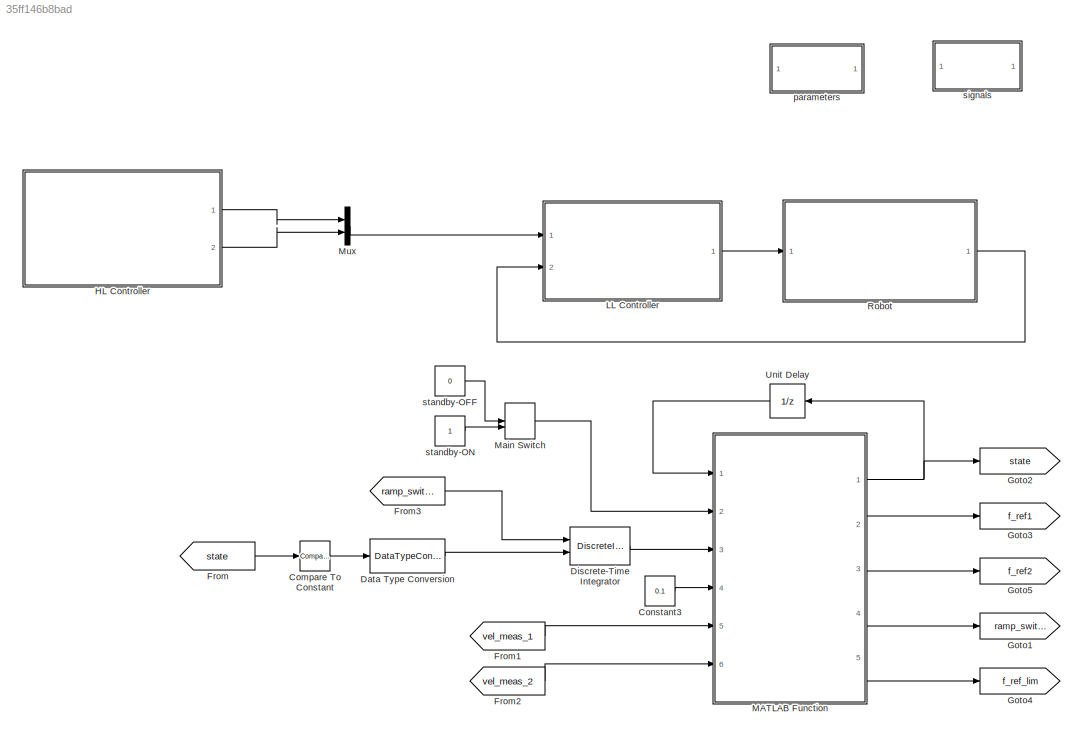
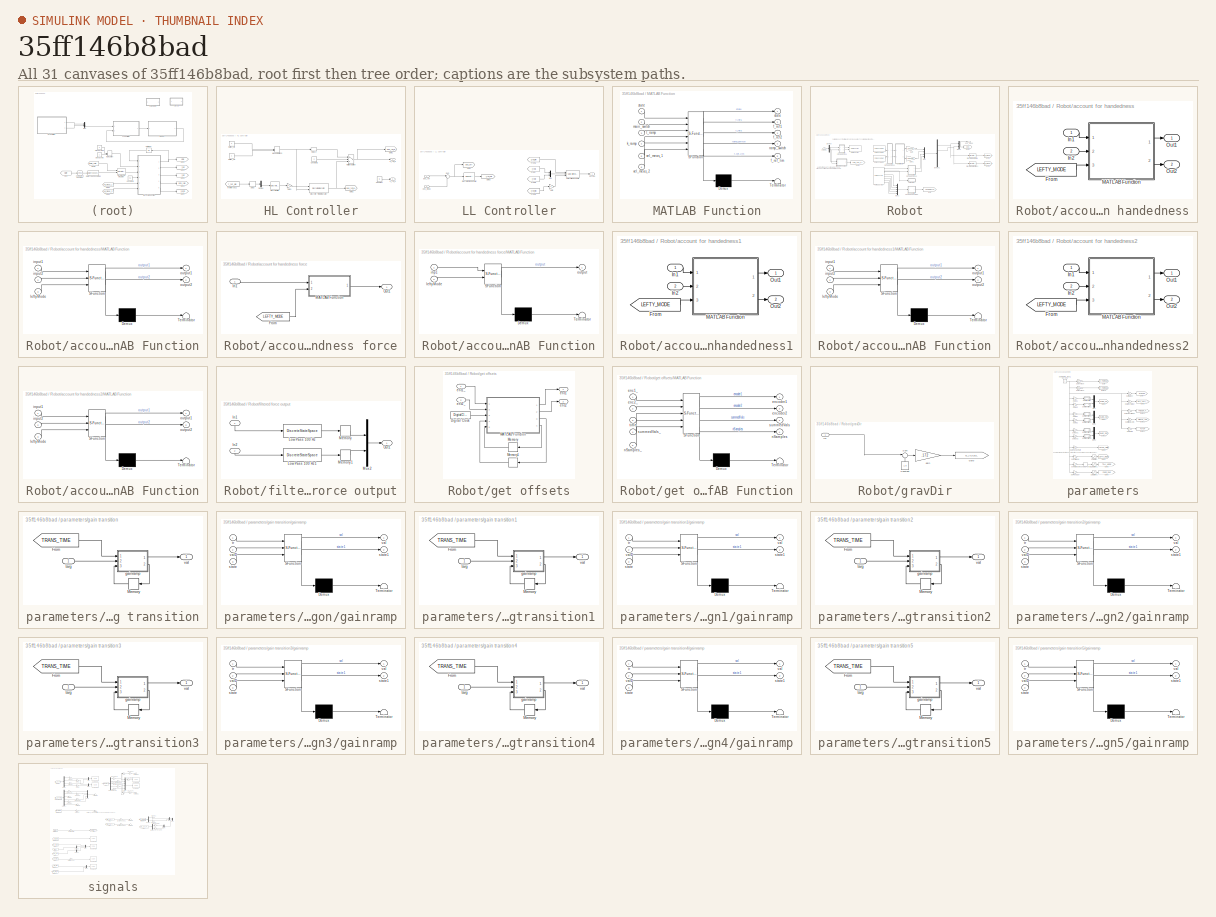
[diagram: thumbnail index - all 31 canvases of the model, root first then tree order]
MODEL slx_35ff146b8bad
KIND model
CONFIG AbsTol = auto
CONFIG FixedStep = .001
CONFIG InitFcn = settupFilter;
CONFIG MaxStep = auto
CONFIG MinStep = auto
CONFIG PreLoadFcn = settupFilter;
CONFIG RelTol = 1e-3
CONFIG SampleTimeConstraint = Unconstrained
CONFIG Solver = FixedStepDiscrete
CONFIG SolverMode = Auto
CONFIG SolverName = FixedStepDiscrete
CONFIG StartTime = 0.0
CONFIG StopTime = inf
BLOCK [Reference] Compare To Constant  REF=simulink/Logic and Bit
Operations/Compare
To Constant
  Ports = [1, 1]
  SourceBlock = simulink/Logic and Bit\nOperations/Compare\nTo Constant
  SourceType = Compare To Constant
BLOCK [Constant] Constant3
  Value = 0.1
BLOCK [DataTypeConversion] Data Type Conversion
  RndMeth = Floor
  SaturateOnIntegerOverflow = off
BLOCK [DiscreteIntegrator] Discrete-Time Integrator
  ExternalReset = either
  ICPrevOutput = DiscIntNeverNeededParam
  ICPrevScaledInput = DiscIntNeverNeededParam
  InitialConditionSetting = State (most efficient)
  LowerSaturationLimit = 0
  Ports = [2, 1]
  SampleTime = -1
  UpperSaturationLimit = 0.9
BLOCK [From] From
  GotoTag = state
  TagVisibility = global
BLOCK [From] From1
  GotoTag = vel_meas_1
  TagVisibility = global
BLOCK [From] From2
  GotoTag = vel_meas_2
  TagVisibility = global
BLOCK [From] From3
  GotoTag = ramp_switch
  TagVisibility = global
BLOCK [Goto] Goto1
  GotoTag = ramp_switch
  TagVisibility = global
BLOCK [Goto] Goto2
  GotoTag = state
  TagVisibility = global
BLOCK [Goto] Goto3
  GotoTag = f_ref1
  TagVisibility = global
BLOCK [Goto] Goto4
  GotoTag = f_ref_lim
  TagVisibility = global
BLOCK [Goto] Goto5
  GotoTag = f_ref2
  TagVisibility = global
BLOCK [SubSystem] HL Controller
  Ports = [0, 2]
  RequestExecContextInheritance = off
  Variant = off
BLOCK [Constant] HL Controller/Constant
  Value = .8
BLOCK [Constant] HL Controller/Constant2
  Value = 0
BLOCK [Delay] HL Controller/Delay
  DelayLength = 1
  InitialCondition = 0
  InputPortMap = u0
  Ports = [1, 1]
BLOCK [Delay] HL Controller/Delay1
  DelayLength = 1
  InitialCondition = 0
  InputPortMap = u0
  Ports = [1, 1]
BLOCK [Demux] HL Controller/Demux
  DisplayOption = bar
  Outputs = 2
  Ports = [1, 2]
BLOCK [DiscreteFilter] HL Controller/Discrete Filter
  Denominator = [a_hp]
  InputPortMap = u0
  Numerator = [b_hp]
  Ports = [1, 1]
BLOCK [DiscreteIntegrator] HL Controller/Discrete-Time Integrator
  ExternalReset = either
  ICPrevOutput = DiscIntNeverNeededParam
  ICPrevScaledInput = DiscIntNeverNeededParam
  InitialConditionSetting = State (most efficient)
  LimitOutput = on
  LowerSaturationLimit = 0
  Ports = [2, 1]
  SampleTime = -1
  UpperSaturationLimit = 0.9
BLOCK [Gain] HL Controller/Gain1
  Gain = -1
  OutDataTypeStr = Inherit: Inherit via internal rule
  ParamDataTypeStr = Inherit: Inherit via internal rule
  SaturateOnIntegerOverflow = off
BLOCK [Goto] HL Controller/Goto1
  GotoTag = pos_ref_g
  TagVisibility = global
BLOCK [Goto] HL Controller/Goto2
  GotoTag = pos_ref_g_2
  TagVisibility = global
BLOCK [ManualSwitch] HL Controller/Manual Switch3
  CurrentSetting = 0
BLOCK [MultiPortSwitch] HL Controller/Multiport Switch
  DataPortIndices = {0,1}
  DataPortOrder = Specify indices
  InputSameDT = off
  Ports = [3, 1]
  SaturateOnIntegerOverflow = off
BLOCK [Constant] HL Controller/Switch_Off
  Value = 0
BLOCK [Constant] HL Controller/Switch_On
BLOCK [From] HL Controller/from forces2
  GotoTag = f_ref_pid
  TagVisibility = global
BLOCK [Outport] HL Controller/p_ref_b
  IconDisplay = Port number
  Port = 2
BLOCK [Outport] HL Controller/p_ref_g
  IconDisplay = Port number
BLOCK [SubSystem] LL Controller
  Ports = [2, 1]
  RequestExecContextInheritance = off
  Variant = off
BLOCK [Reference] LL Controller/Discrete PID Controller  REF=simulink/Continuous/PID Controller
  Ports = [1, 1]
  SourceBlock = simulink/Continuous/PID Controller
  SourceType = PID 1dof
BLOCK [Outport] LL Controller/Forces
  IconDisplay = Port number
BLOCK [From] LL Controller/From
  GotoTag = f_ref1
  TagVisibility = global
BLOCK [From] LL Controller/From1
  GotoTag = f_ref_lim
  TagVisibility = global
BLOCK [From] LL Controller/From2
  GotoTag = f_ref_lim
  TagVisibility = global
BLOCK [From] LL Controller/From3
  GotoTag = f_ref2
  TagVisibility = global
BLOCK [Gain] LL Controller/Gain
  Gain = -1
  OutDataTypeStr = Inherit: Inherit via internal rule
  ParamDataTypeStr = Inherit: Inherit via internal rule
  SaturateOnIntegerOverflow = off
BLOCK [Goto] LL Controller/Goto2
  GotoTag = pos_err
  TagVisibility = global
BLOCK [Goto] LL Controller/Goto3
  GotoTag = f_ref_pid
  TagVisibility = global
BLOCK [Mux] LL Controller/Mux
  DisplayOption = bar
  Inputs = 2
  Ports = [2, 1]
BLOCK [Reference] LL Controller/Saturation Dynamic  REF=simulink/Discontinuities/Saturation
Dynamic
  Ports = [3, 1]
  SourceBlock = simulink/Discontinuities/Saturation\nDynamic
  SourceType = Saturation Dynamic
BLOCK [Sum] LL Controller/Sum
  IconShape = round
  InputSameDT = off
  Inputs = |+-
  OutDataTypeStr = Inherit: Inherit via internal rule
  Ports = [2, 1]
  SaturateOnIntegerOverflow = off
BLOCK [Inport] LL Controller/pos_meas
  IconDisplay = Port number
  Port = 2
BLOCK [Inport] LL Controller/pos_ref
  IconDisplay = Port number
BLOCK [SubSystem] MATLAB Function
  ErrorFcn = Stateflow.Translate.translate
  MinAlgLoopOccurrences = on
  PermitHierarchicalResolution = ExplicitOnly
  Ports = [6, 5]
  RequestExecContextInheritance = off
  SFBlockType = MATLAB Function
  TreatAsAtomicUnit = on
  Variant = off
BLOCK [Demux] MATLAB Function/ Demux 
  Outputs = 1
  Ports = [1, 1]
BLOCK [S-Function] MATLAB Function/ SFunction 
  EnableBusSupport = on
  FunctionName = sf_sfun
  PortCounts = [6 6]
  Ports = [6, 6]
  SFunctionDeploymentMode = off
  Tag = Stateflow S-Function FINGERGame 2
BLOCK [Terminator] MATLAB Function/ Terminator 
BLOCK [Outport] MATLAB Function/f_ref1
  IconDisplay = Port number
  Port = 2
BLOCK [Outport] MATLAB Function/f_ref2
  IconDisplay = Port number
  Port = 3
BLOCK [Outport] MATLAB Function/f_ref_lim
  IconDisplay = Port number
  Port = 5
BLOCK [Inport] MATLAB Function/k_ramp
  IconDisplay = Port number
  Port = 4
BLOCK [Inport] MATLAB Function/main_switch
  IconDisplay = Port number
  Port = 2
BLOCK [Outport] MATLAB Function/ramp_switch
  IconDisplay = Port number
  Port = 4
BLOCK [Outport] MATLAB Function/state
  IconDisplay = Port number
BLOCK [Inport] MATLAB Function/state 
  IconDisplay = Port number
BLOCK [Inport] MATLAB Function/t_ramp
  IconDisplay = Port number
  Port = 3
BLOCK [Inport] MATLAB Function/vel_meas_1
  IconDisplay = Port number
  Port = 5
BLOCK [Inport] MATLAB Function/vel_meas_2
  IconDisplay = Port number
  Port = 6
BLOCK [ManualSwitch] Main Switch
BLOCK [Mux] Mux
  DisplayOption = bar
  Inputs = 2
  Ports = [2, 1]
BLOCK [SubSystem] Robot
  Ports = [1, 1]
  RequestExecContextInheritance = off
  Variant = off
BLOCK [Demux] Robot/Demux
  DisplayOption = bar
  Outputs = 2
  Ports = [1, 2]
BLOCK [Demux] Robot/Demux1
  DisplayOption = bar
  Ports = [1, 4]
BLOCK [Reference] Robot/Discrete Derivative  REF=simulink/Discrete/Discrete Derivative
  Ports = [1, 1]
  SourceBlock = simulink/Discrete/Discrete Derivative
  SourceType = Discrete Derivative
BLOCK [Reference] Robot/Discrete Derivative1  REF=simulink/Discrete/Discrete Derivative
  Ports = [1, 1]
  SourceBlock = simulink/Discrete/Discrete Derivative
  SourceType = Discrete Derivative
BLOCK [Inport] Robot/Forces
  IconDisplay = Port number
BLOCK [Gain] Robot/Gain
  Gain = 1/4500.0
  OutDataTypeStr = Inherit: Inherit via internal rule
  ParamDataTypeStr = Inherit: Inherit via internal rule
  SaturateOnIntegerOverflow = off
BLOCK [Gain] Robot/Gain1
  Gain = 1/4500.0
  OutDataTypeStr = Inherit: Inherit via internal rule
  ParamDataTypeStr = Inherit: Inherit via internal rule
  SaturateOnIntegerOverflow = off
BLOCK [Goto] Robot/Goto
  GotoTag = LOADCELLS
  TagVisibility = global
BLOCK [Goto] Robot/Goto1
  GotoTag = AVE_ACT_FORCE
  TagVisibility = global
BLOCK [Goto] Robot/Goto2
  GotoTag = pos
  TagVisibility = global
BLOCK [Goto] Robot/Goto5
  GotoTag = vel_meas_1
  TagVisibility = global
BLOCK [Goto] Robot/Goto6
  GotoTag = vel_meas_2
  TagVisibility = global
BLOCK [Mux] Robot/Mux
  DisplayOption = bar
  Ports = [4, 1]
BLOCK [Mux] Robot/Mux1
  DisplayOption = bar
  Inputs = 5
  Ports = [5, 1]
BLOCK [Mux] Robot/Mux3
  DisplayOption = bar
  Inputs = 2
  Ports = [2, 1]
BLOCK [Reference] Robot/PCI 6221 ENC   REF=xpcnilib/Incremental
Encoder/PCI 6221 ENC 
  Ports = [0, 1]
  SourceBlock = xpcnilib/Incremental\nEncoder/PCI 6221 ENC
  SourceType = encinpnipci6221
BLOCK [Reference] Robot/PCI 6221 ENC 1  REF=xpcnilib/Incremental
Encoder/PCI 6221 ENC 
  Ports = [0, 1]
  SourceBlock = xpcnilib/Incremental\nEncoder/PCI 6221 ENC
  SourceType = encinpnipci6221
BLOCK [Reference] Robot/PCI-6221 AD1  REF=xpcnilib/A//D/M Series/PCI-6221 AD
  Ports = [0, 8]
  SourceBlock = xpcnilib/A//D/M Series/PCI-6221 AD
  SourceType = adnipci6221
BLOCK [Reference] Robot/PCI-6221 DA  REF=xpcnilib/D//A/M Series/PCI-6221 DA
  Ports = [2]
  SourceBlock = xpcnilib/D//A/M Series/PCI-6221 DA
  SourceType = danipci6221
BLOCK [SubSystem] Robot/account for handedness
  Ports = [2, 2]
  RequestExecContextInheritance = off
  Variant = off
BLOCK [SubSystem] Robot/account for handedness force
  Ports = [1, 1]
  RequestExecContextInheritance = off
  Variant = off
BLOCK [From] Robot/account for handedness force/From
  GotoTag = LEFTY_MODE
  TagVisibility = global
BLOCK [Inport] Robot/account for handedness force/In1
  IconDisplay = Port number
BLOCK [SubSystem] Robot/account for handedness force/MATLAB Function
  ErrorFcn = Stateflow.Translate.translate
  PermitHierarchicalResolution = ExplicitOnly
  Ports = [2, 1]
  RequestExecContextInheritance = off
  SFBlockType = MATLAB Function
  TreatAsAtomicUnit = on
  Variant = off
BLOCK [Demux] Robot/account for handedness force/MATLAB Function/ Demux 
  Outputs = 1
  Ports = [1, 1]
BLOCK [S-Function] Robot/account for handedness force/MATLAB Function/ SFunction 
  EnableBusSupport = on
  FunctionName = sf_sfun
  PortCounts = [2 2]
  Ports = [2, 2]
  SFunctionDeploymentMode = off
  Tag = Stateflow S-Function FINGERGame 26
BLOCK [Terminator] Robot/account for handedness force/MATLAB Function/ Terminator 
BLOCK [Inport] Robot/account for handedness force/MATLAB Function/inp1
  IconDisplay = Port number
BLOCK [Inport] Robot/account for handedness force/MATLAB Function/leftyMode
  IconDisplay = Port number
  Port = 2
BLOCK [Outport] Robot/account for handedness force/MATLAB Function/output
  IconDisplay = Port number
BLOCK [Outport] Robot/account for handedness force/Out1
  IconDisplay = Port number
BLOCK [From] Robot/account for handedness/From
  GotoTag = LEFTY_MODE
  TagVisibility = global
BLOCK [Inport] Robot/account for handedness/In1
  IconDisplay = Port number
BLOCK [Inport] Robot/account for handedness/In2
  IconDisplay = Port number
  Port = 2
BLOCK [SubSystem] Robot/account for handedness/MATLAB Function
  ErrorFcn = Stateflow.Translate.translate
  PermitHierarchicalResolution = ExplicitOnly
  Ports = [3, 2]
  RequestExecContextInheritance = off
  SFBlockType = MATLAB Function
  TreatAsAtomicUnit = on
  Variant = off
BLOCK [Demux] Robot/account for handedness/MATLAB Function/ Demux 
  Outputs = 1
  Ports = [1, 1]
BLOCK [S-Function] Robot/account for handedness/MATLAB Function/ SFunction 
  EnableBusSupport = on
  FunctionName = sf_sfun
  PortCounts = [3 3]
  Ports = [3, 3]
  SFunctionDeploymentMode = off
  Tag = Stateflow S-Function FINGERGame 11
BLOCK [Terminator] Robot/account for handedness/MATLAB Function/ Terminator 
BLOCK [Inport] Robot/account for handedness/MATLAB Function/input1
  IconDisplay = Port number
BLOCK [Inport] Robot/account for handedness/MATLAB Function/input2
  IconDisplay = Port number
  Port = 2
BLOCK [Inport] Robot/account for handedness/MATLAB Function/leftyMode
  IconDisplay = Port number
  Port = 3
BLOCK [Outport] Robot/account for handedness/MATLAB Function/output1
  IconDisplay = Port number
BLOCK [Outport] Robot/account for handedness/MATLAB Function/output2
  IconDisplay = Port number
  Port = 2
BLOCK [Outport] Robot/account for handedness/Out1
  IconDisplay = Port number
BLOCK [Outport] Robot/account for handedness/Out2
  IconDisplay = Port number
  Port = 2
BLOCK [SubSystem] Robot/account for handedness1
  Ports = [2, 2]
  RequestExecContextInheritance = off
  Variant = off
BLOCK [From] Robot/account for handedness1/From
  GotoTag = LEFTY_MODE
  TagVisibility = global
BLOCK [Inport] Robot/account for handedness1/In1
  IconDisplay = Port number
BLOCK [Inport] Robot/account for handedness1/In2
  IconDisplay = Port number
  Port = 2
BLOCK [SubSystem] Robot/account for handedness1/MATLAB Function
  ErrorFcn = Stateflow.Translate.translate
  PermitHierarchicalResolution = ExplicitOnly
  Ports = [3, 2]
  RequestExecContextInheritance = off
  SFBlockType = MATLAB Function
  TreatAsAtomicUnit = on
  Variant = off
BLOCK [Demux] Robot/account for handedness1/MATLAB Function/ Demux 
  Outputs = 1
  Ports = [1, 1]
BLOCK [S-Function] Robot/account for handedness1/MATLAB Function/ SFunction 
  EnableBusSupport = on
  FunctionName = sf_sfun
  PortCounts = [3 3]
  Ports = [3, 3]
  SFunctionDeploymentMode = off
  Tag = Stateflow S-Function FINGERGame 12
BLOCK [Terminator] Robot/account for handedness1/MATLAB Function/ Terminator 
BLOCK [Inport] Robot/account for handedness1/MATLAB Function/input1
  IconDisplay = Port number
BLOCK [Inport] Robot/account for handedness1/MATLAB Function/input2
  IconDisplay = Port number
  Port = 2
BLOCK [Inport] Robot/account for handedness1/MATLAB Function/leftyMode
  IconDisplay = Port number
  Port = 3
BLOCK [Outport] Robot/account for handedness1/MATLAB Function/output1
  IconDisplay = Port number
BLOCK [Outport] Robot/account for handedness1/MATLAB Function/output2
  IconDisplay = Port number
  Port = 2
BLOCK [Outport] Robot/account for handedness1/Out1
  IconDisplay = Port number
BLOCK [Outport] Robot/account for handedness1/Out2
  IconDisplay = Port number
  Port = 2
BLOCK [SubSystem] Robot/account for handedness2
  Ports = [2, 2]
  RequestExecContextInheritance = off
  Variant = off
BLOCK [From] Robot/account for handedness2/From
  GotoTag = LEFTY_MODE
  TagVisibility = global
BLOCK [Inport] Robot/account for handedness2/In1
  IconDisplay = Port number
BLOCK [Inport] Robot/account for handedness2/In2
  IconDisplay = Port number
  Port = 2
BLOCK [SubSystem] Robot/account for handedness2/MATLAB Function
  ErrorFcn = Stateflow.Translate.translate
  PermitHierarchicalResolution = ExplicitOnly
  Ports = [3, 2]
  RequestExecContextInheritance = off
  SFBlockType = MATLAB Function
  TreatAsAtomicUnit = on
  Variant = off
BLOCK [Demux] Robot/account for handedness2/MATLAB Function/ Demux 
  Outputs = 1
  Ports = [1, 1]
BLOCK [S-Function] Robot/account for handedness2/MATLAB Function/ SFunction 
  EnableBusSupport = on
  FunctionName = sf_sfun
  PortCounts = [3 3]
  Ports = [3, 3]
  SFunctionDeploymentMode = off
  Tag = Stateflow S-Function FINGERGame 13
BLOCK [Terminator] Robot/account for handedness2/MATLAB Function/ Terminator 
BLOCK [Inport] Robot/account for handedness2/MATLAB Function/input1
  IconDisplay = Port number
BLOCK [Inport] Robot/account for handedness2/MATLAB Function/input2
  IconDisplay = Port number
  Port = 2
BLOCK [Inport] Robot/account for handedness2/MATLAB Function/leftyMode
  IconDisplay = Port number
  Port = 3
BLOCK [Outport] Robot/account for handedness2/MATLAB Function/output1
  IconDisplay = Port number
BLOCK [Outport] Robot/account for handedness2/MATLAB Function/output2
  IconDisplay = Port number
  Port = 2
BLOCK [Outport] Robot/account for handedness2/Out1
  IconDisplay = Port number
BLOCK [Outport] Robot/account for handedness2/Out2
  IconDisplay = Port number
  Port = 2
BLOCK [SubSystem] Robot/filtered force output
  Ports = [2, 1]
  RequestExecContextInheritance = off
  Variant = off
BLOCK [Inport] Robot/filtered force output/In1
  IconDisplay = Port number
BLOCK [Inport] Robot/filtered force output/In2
  IconDisplay = Port number
  Port = 2
BLOCK [DiscreteStateSpace] Robot/filtered force output/Low Pass 100 Hz
  A = Alow
  B = Blow
  C = Clow
  D = Dlow
  SampleTime = -1
  X0 = x0low
BLOCK [DiscreteStateSpace] Robot/filtered force output/Low Pass 100 Hz1
  A = Alow
  B = Blow
  C = Clow
  D = Dlow
  SampleTime = -1
  X0 = x0low
BLOCK [Memory] Robot/filtered force output/Memory
BLOCK [Memory] Robot/filtered force output/Memory1
BLOCK [Mux] Robot/filtered force output/Mux2
  DisplayOption = bar
  Inputs = 2
  Ports = [2, 1]
BLOCK [Outport] Robot/filtered force output/Out1
  IconDisplay = Port number
BLOCK [SubSystem] Robot/get offsets
  Ports = [2, 2]
  RequestExecContextInheritance = off
  Variant = off
BLOCK [DigitalClock] Robot/get offsets/Digital Clock
  SampleTime = .001
BLOCK [SubSystem] Robot/get offsets/MATLAB Function
  ErrorFcn = Stateflow.Translate.translate
  PermitHierarchicalResolution = ExplicitOnly
  Ports = [5, 4]
  RequestExecContextInheritance = off
  SFBlockType = MATLAB Function
  TreatAsAtomicUnit = on
  Variant = off
BLOCK [Demux] Robot/get offsets/MATLAB Function/ Demux 
  Outputs = 1
  Ports = [1, 1]
BLOCK [S-Function] Robot/get offsets/MATLAB Function/ SFunction 
  EnableBusSupport = on
  FunctionName = sf_sfun
  PortCounts = [5 5]
  Ports = [5, 5]
  SFunctionDeploymentMode = off
  Tag = Stateflow S-Function FINGERGame 9
BLOCK [Terminator] Robot/get offsets/MATLAB Function/ Terminator 
BLOCK [Inport] Robot/get offsets/MATLAB Function/enc1_
  IconDisplay = Port number
BLOCK [Inport] Robot/get offsets/MATLAB Function/enc2_
  IconDisplay = Port number
  Port = 2
BLOCK [Outport] Robot/get offsets/MATLAB Function/encoder1
  IconDisplay = Port number
BLOCK [Outport] Robot/get offsets/MATLAB Function/encoder2
  IconDisplay = Port number
  Port = 2
BLOCK [Outport] Robot/get offsets/MATLAB Function/nSamples
  IconDisplay = Port number
  Port = 4
BLOCK [Inport] Robot/get offsets/MATLAB Function/nSamples_
  IconDisplay = Port number
  Port = 5
BLOCK [Outport] Robot/get offsets/MATLAB Function/summedVals
  IconDisplay = Port number
  Port = 3
BLOCK [Inport] Robot/get offsets/MATLAB Function/summedVals_
  IconDisplay = Port number
  Port = 4
BLOCK [Inport] Robot/get offsets/MATLAB Function/time
  IconDisplay = Port number
  Port = 3
BLOCK [Memory] Robot/get offsets/Memory
BLOCK [Memory] Robot/get offsets/Memory1
  X0 = [0,0]
BLOCK [Outport] Robot/get offsets/enc1
  IconDisplay = Port number
BLOCK [Inport] Robot/get offsets/enc1_
  IconDisplay = Port number
BLOCK [Outport] Robot/get offsets/enc2
  IconDisplay = Port number
  Port = 2
BLOCK [Inport] Robot/get offsets/enc2_
  IconDisplay = Port number
  Port = 2
BLOCK [SubSystem] Robot/gravDir
  Ports = [1]
  RequestExecContextInheritance = off
  Variant = off
BLOCK [Constant] Robot/gravDir/Constant
  Value = 1.5
BLOCK [Goto] Robot/gravDir/Goto
  GotoTag = G_ACCEL
  TagVisibility = global
BLOCK [Inport] Robot/gravDir/In1
  IconDisplay = Port number
BLOCK [Sum] Robot/gravDir/Sum
  IconShape = round
  InputSameDT = off
  Inputs = |+-
  OutDataTypeStr = Inherit: Inherit via internal rule
  Ports = [2, 1]
  SaturateOnIntegerOverflow = off
BLOCK [Gain] Robot/gravDir/gain
  Gain = .172
  OutDataTypeStr = Inherit: Inherit via internal rule
  ParamDataTypeStr = Inherit: Inherit via internal rule
  SaturateOnIntegerOverflow = off
BLOCK [Outport] Robot/pos_meas
  IconDisplay = Port number
BLOCK [UnitDelay] Unit Delay
  InputProcessing = Elements as channels (sample based)
  SampleTime = -1
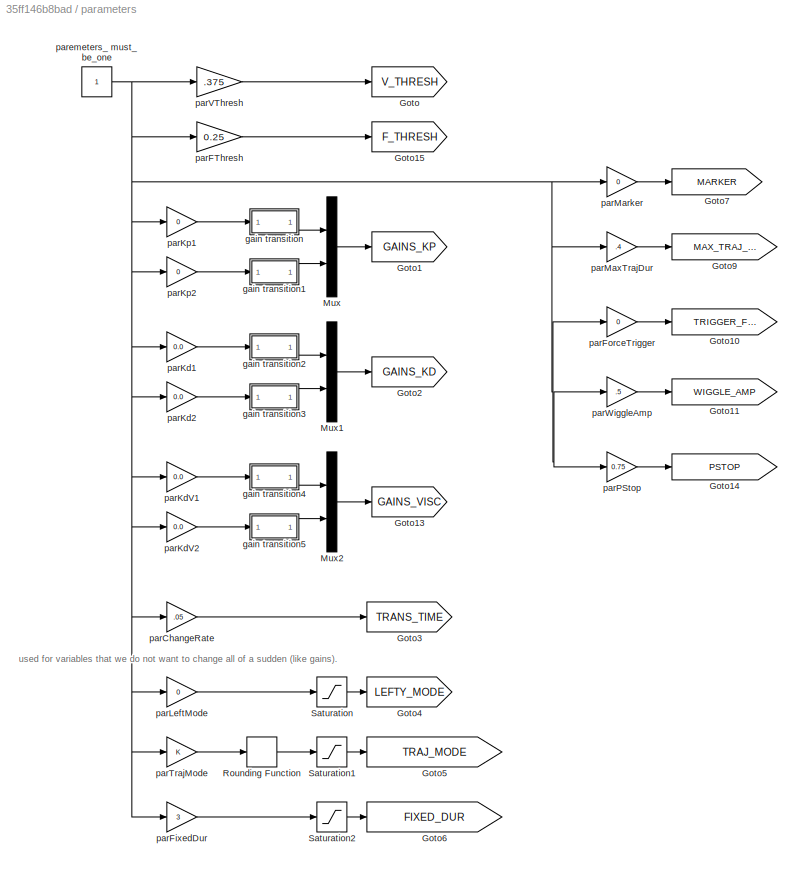
BLOCK [SubSystem] parameters
  Ports = []
  RequestExecContextInheritance = off
  Variant = off
BLOCK [Goto] parameters/Goto
  GotoTag = V_THRESH
  TagVisibility = global
BLOCK [Goto] parameters/Goto1
  GotoTag = GAINS_KP
  TagVisibility = global
BLOCK [Goto] parameters/Goto10
  GotoTag = TRIGGER_FORCE
  TagVisibility = global
BLOCK [Goto] parameters/Goto11
  GotoTag = WIGGLE_AMP
  TagVisibility = global
BLOCK [Goto] parameters/Goto13
  GotoTag = GAINS_VISC
  TagVisibility = global
BLOCK [Goto] parameters/Goto14
  GotoTag = PSTOP
  TagVisibility = global
BLOCK [Goto] parameters/Goto15
  GotoTag = F_THRESH
  TagVisibility = global
BLOCK [Goto] parameters/Goto2
  GotoTag = GAINS_KD
  TagVisibility = global
BLOCK [Goto] parameters/Goto3
  GotoTag = TRANS_TIME
  TagVisibility = global
BLOCK [Goto] parameters/Goto4
  GotoTag = LEFTY_MODE
  TagVisibility = global
BLOCK [Goto] parameters/Goto5
  GotoTag = TRAJ_MODE
  TagVisibility = global
BLOCK [Goto] parameters/Goto6
  GotoTag = FIXED_DUR
  TagVisibility = global
BLOCK [Goto] parameters/Goto7
  GotoTag = MARKER
  TagVisibility = global
BLOCK [Goto] parameters/Goto9
  GotoTag = MAX_TRAJ_DUR
  TagVisibility = global
BLOCK [Mux] parameters/Mux
  DisplayOption = bar
  Inputs = 2
  Ports = [2, 1]
BLOCK [Mux] parameters/Mux1
  DisplayOption = bar
  Inputs = 2
  Ports = [2, 1]
BLOCK [Mux] parameters/Mux2
  DisplayOption = bar
  Inputs = 2
  Ports = [2, 1]
BLOCK [Rounding] parameters/Rounding Function
  Operator = round
BLOCK [Saturate] parameters/Saturation
  InputPortMap = u0
  LowerLimit = 0
  Ports = [1, 1]
  UpperLimit = 1
BLOCK [Saturate] parameters/Saturation1
  InputPortMap = u0
  LowerLimit = 1
  Ports = [1, 1]
  UpperLimit = 4
BLOCK [Saturate] parameters/Saturation2
  InputPortMap = u0
  LowerLimit = .25
  Ports = [1, 1]
  UpperLimit = 10
BLOCK [SubSystem] parameters/gain transition
  Ports = [1, 1]
  RequestExecContextInheritance = off
  Variant = off
BLOCK [From] parameters/gain transition/From
  GotoTag = TRANS_TIME
  TagVisibility = global
BLOCK [Memory] parameters/gain transition/Memory
  X0 = zeros(1,4)
BLOCK [SubSystem] parameters/gain transition/gainramp
  ErrorFcn = Stateflow.Translate.translate
  PermitHierarchicalResolution = ExplicitOnly
  Ports = [3, 2]
  RequestExecContextInheritance = off
  SFBlockType = MATLAB Function
  TreatAsAtomicUnit = on
  Variant = off
BLOCK [Demux] parameters/gain transition/gainramp/ Demux 
  Outputs = 1
  Ports = [1, 1]
BLOCK [S-Function] parameters/gain transition/gainramp/ SFunction 
  EnableBusSupport = on
  FunctionName = sf_sfun
  PortCounts = [3 3]
  Ports = [3, 3]
  SFunctionDeploymentMode = off
  Tag = Stateflow S-Function FINGERGame 14
BLOCK [Terminator] parameters/gain transition/gainramp/ Terminator 
BLOCK [Inport] parameters/gain transition/gainramp/state
  IconDisplay = Port number
  Port = 3
BLOCK [Outport] parameters/gain transition/gainramp/state1
  IconDisplay = Port number
  Port = 2
BLOCK [Inport] parameters/gain transition/gainramp/tr
  IconDisplay = Port number
BLOCK [Outport] parameters/gain transition/gainramp/val
  IconDisplay = Port number
BLOCK [Inport] parameters/gain transition/gainramp/valD
  IconDisplay = Port number
  Port = 2
BLOCK [Inport] parameters/gain transition/targ
  IconDisplay = Port number
BLOCK [Outport] parameters/gain transition/val
  IconDisplay = Port number
BLOCK [SubSystem] parameters/gain transition1
  Ports = [1, 1]
  RequestExecContextInheritance = off
  Variant = off
BLOCK [From] parameters/gain transition1/From
  GotoTag = TRANS_TIME
  TagVisibility = global
BLOCK [Memory] parameters/gain transition1/Memory
  X0 = zeros(1,4)
BLOCK [SubSystem] parameters/gain transition1/gainramp
  ErrorFcn = Stateflow.Translate.translate
  PermitHierarchicalResolution = ExplicitOnly
  Ports = [3, 2]
  RequestExecContextInheritance = off
  SFBlockType = MATLAB Function
  TreatAsAtomicUnit = on
  Variant = off
BLOCK [Demux] parameters/gain transition1/gainramp/ Demux 
  Outputs = 1
  Ports = [1, 1]
BLOCK [S-Function] parameters/gain transition1/gainramp/ SFunction 
  EnableBusSupport = on
  FunctionName = sf_sfun
  PortCounts = [3 3]
  Ports = [3, 3]
  SFunctionDeploymentMode = off
  Tag = Stateflow S-Function FINGERGame 15
BLOCK [Terminator] parameters/gain transition1/gainramp/ Terminator 
BLOCK [Inport] parameters/gain transition1/gainramp/state
  IconDisplay = Port number
  Port = 3
BLOCK [Outport] parameters/gain transition1/gainramp/state1
  IconDisplay = Port number
  Port = 2
BLOCK [Inport] parameters/gain transition1/gainramp/tr
  IconDisplay = Port number
BLOCK [Outport] parameters/gain transition1/gainramp/val
  IconDisplay = Port number
BLOCK [Inport] parameters/gain transition1/gainramp/valD
  IconDisplay = Port number
  Port = 2
BLOCK [Inport] parameters/gain transition1/targ
  IconDisplay = Port number
BLOCK [Outport] parameters/gain transition1/val
  IconDisplay = Port number
BLOCK [SubSystem] parameters/gain transition2
  Ports = [1, 1]
  RequestExecContextInheritance = off
  Variant = off
BLOCK [From] parameters/gain transition2/From
  GotoTag = TRANS_TIME
  TagVisibility = global
BLOCK [Memory] parameters/gain transition2/Memory
  X0 = zeros(1,4)
BLOCK [SubSystem] parameters/gain transition2/gainramp
  ErrorFcn = Stateflow.Translate.translate
  PermitHierarchicalResolution = ExplicitOnly
  Ports = [3, 2]
  RequestExecContextInheritance = off
  SFBlockType = MATLAB Function
  TreatAsAtomicUnit = on
  Variant = off
BLOCK [Demux] parameters/gain transition2/gainramp/ Demux 
  Outputs = 1
  Ports = [1, 1]
BLOCK [S-Function] parameters/gain transition2/gainramp/ SFunction 
  EnableBusSupport = on
  FunctionName = sf_sfun
  PortCounts = [3 3]
  Ports = [3, 3]
  SFunctionDeploymentMode = off
  Tag = Stateflow S-Function FINGERGame 16
BLOCK [Terminator] parameters/gain transition2/gainramp/ Terminator 
BLOCK [Inport] parameters/gain transition2/gainramp/state
  IconDisplay = Port number
  Port = 3
BLOCK [Outport] parameters/gain transition2/gainramp/state1
  IconDisplay = Port number
  Port = 2
BLOCK [Inport] parameters/gain transition2/gainramp/tr
  IconDisplay = Port number
BLOCK [Outport] parameters/gain transition2/gainramp/val
  IconDisplay = Port number
BLOCK [Inport] parameters/gain transition2/gainramp/valD
  IconDisplay = Port number
  Port = 2
BLOCK [Inport] parameters/gain transition2/targ
  IconDisplay = Port number
BLOCK [Outport] parameters/gain transition2/val
  IconDisplay = Port number
BLOCK [SubSystem] parameters/gain transition3
  Ports = [1, 1]
  RequestExecContextInheritance = off
  Variant = off
BLOCK [From] parameters/gain transition3/From
  GotoTag = TRANS_TIME
  TagVisibility = global
BLOCK [Memory] parameters/gain transition3/Memory
  X0 = zeros(1,4)
BLOCK [SubSystem] parameters/gain transition3/gainramp
  ErrorFcn = Stateflow.Translate.translate
  PermitHierarchicalResolution = ExplicitOnly
  Ports = [3, 2]
  RequestExecContextInheritance = off
  SFBlockType = MATLAB Function
  TreatAsAtomicUnit = on
  Variant = off
BLOCK [Demux] parameters/gain transition3/gainramp/ Demux 
  Outputs = 1
  Ports = [1, 1]
BLOCK [S-Function] parameters/gain transition3/gainramp/ SFunction 
  EnableBusSupport = on
  FunctionName = sf_sfun
  PortCounts = [3 3]
  Ports = [3, 3]
  SFunctionDeploymentMode = off
  Tag = Stateflow S-Function FINGERGame 17
BLOCK [Terminator] parameters/gain transition3/gainramp/ Terminator 
BLOCK [Inport] parameters/gain transition3/gainramp/state
  IconDisplay = Port number
  Port = 3
BLOCK [Outport] parameters/gain transition3/gainramp/state1
  IconDisplay = Port number
  Port = 2
BLOCK [Inport] parameters/gain transition3/gainramp/tr
  IconDisplay = Port number
BLOCK [Outport] parameters/gain transition3/gainramp/val
  IconDisplay = Port number
BLOCK [Inport] parameters/gain transition3/gainramp/valD
  IconDisplay = Port number
  Port = 2
BLOCK [Inport] parameters/gain transition3/targ
  IconDisplay = Port number
BLOCK [Outport] parameters/gain transition3/val
  IconDisplay = Port number
BLOCK [SubSystem] parameters/gain transition4
  Ports = [1, 1]
  RequestExecContextInheritance = off
  Variant = off
BLOCK [From] parameters/gain transition4/From
  GotoTag = TRANS_TIME
  TagVisibility = global
BLOCK [Memory] parameters/gain transition4/Memory
  X0 = zeros(1,4)
BLOCK [SubSystem] parameters/gain transition4/gainramp
  ErrorFcn = Stateflow.Translate.translate
  PermitHierarchicalResolution = ExplicitOnly
  Ports = [3, 2]
  RequestExecContextInheritance = off
  SFBlockType = MATLAB Function
  TreatAsAtomicUnit = on
  Variant = off
BLOCK [Demux] parameters/gain transition4/gainramp/ Demux 
  Outputs = 1
  Ports = [1, 1]
BLOCK [S-Function] parameters/gain transition4/gainramp/ SFunction 
  EnableBusSupport = on
  FunctionName = sf_sfun
  PortCounts = [3 3]
  Ports = [3, 3]
  SFunctionDeploymentMode = off
  Tag = Stateflow S-Function FINGERGame 43
BLOCK [Terminator] parameters/gain transition4/gainramp/ Terminator 
BLOCK [Inport] parameters/gain transition4/gainramp/state
  IconDisplay = Port number
  Port = 3
BLOCK [Outport] parameters/gain transition4/gainramp/state1
  IconDisplay = Port number
  Port = 2
BLOCK [Inport] parameters/gain transition4/gainramp/tr
  IconDisplay = Port number
BLOCK [Outport] parameters/gain transition4/gainramp/val
  IconDisplay = Port number
BLOCK [Inport] parameters/gain transition4/gainramp/valD
  IconDisplay = Port number
  Port = 2
BLOCK [Inport] parameters/gain transition4/targ
  IconDisplay = Port number
BLOCK [Outport] parameters/gain transition4/val
  IconDisplay = Port number
BLOCK [SubSystem] parameters/gain transition5
  Ports = [1, 1]
  RequestExecContextInheritance = off
  Variant = off
BLOCK [From] parameters/gain transition5/From
  GotoTag = TRANS_TIME
  TagVisibility = global
BLOCK [Memory] parameters/gain transition5/Memory
  X0 = zeros(1,4)
BLOCK [SubSystem] parameters/gain transition5/gainramp
  ErrorFcn = Stateflow.Translate.translate
  PermitHierarchicalResolution = ExplicitOnly
  Ports = [3, 2]
  RequestExecContextInheritance = off
  SFBlockType = MATLAB Function
  TreatAsAtomicUnit = on
  Variant = off
BLOCK [Demux] parameters/gain transition5/gainramp/ Demux 
  Outputs = 1
  Ports = [1, 1]
BLOCK [S-Function] parameters/gain transition5/gainramp/ SFunction 
  EnableBusSupport = on
  FunctionName = sf_sfun
  PortCounts = [3 3]
  Ports = [3, 3]
  SFunctionDeploymentMode = off
  Tag = Stateflow S-Function FINGERGame 44
BLOCK [Terminator] parameters/gain transition5/gainramp/ Terminator 
BLOCK [Inport] parameters/gain transition5/gainramp/state
  IconDisplay = Port number
  Port = 3
BLOCK [Outport] parameters/gain transition5/gainramp/state1
  IconDisplay = Port number
  Port = 2
BLOCK [Inport] parameters/gain transition5/gainramp/tr
  IconDisplay = Port number
BLOCK [Outport] parameters/gain transition5/gainramp/val
  IconDisplay = Port number
BLOCK [Inport] parameters/gain transition5/gainramp/valD
  IconDisplay = Port number
  Port = 2
BLOCK [Inport] parameters/gain transition5/targ
  IconDisplay = Port number
BLOCK [Outport] parameters/gain transition5/val
  IconDisplay = Port number
BLOCK [Gain] parameters/parChangeRate
  Gain = .05
  OutDataTypeStr = Inherit: Inherit via internal rule
  ParamDataTypeStr = Inherit: Inherit via internal rule
  SaturateOnIntegerOverflow = off
BLOCK [Gain] parameters/parFThresh
  Gain = 0.25
  OutDataTypeStr = Inherit: Inherit via internal rule
  ParamDataTypeStr = Inherit: Inherit via internal rule
  SaturateOnIntegerOverflow = off
BLOCK [Gain] parameters/parFixedDur
  Gain = 3
  OutDataTypeStr = Inherit: Inherit via internal rule
  ParamDataTypeStr = Inherit: Inherit via internal rule
  SaturateOnIntegerOverflow = off
BLOCK [Gain] parameters/parForceTrigger
  Gain = 0
  OutDataTypeStr = Inherit: Inherit via internal rule
  ParamDataTypeStr = Inherit: Inherit via internal rule
  SaturateOnIntegerOverflow = off
BLOCK [Gain] parameters/parKd1
  Gain = 0.0
  OutDataTypeStr = Inherit: Inherit via internal rule
  ParamDataTypeStr = Inherit: Inherit via internal rule
  SaturateOnIntegerOverflow = off
BLOCK [Gain] parameters/parKd2
  Gain = 0.0
  OutDataTypeStr = Inherit: Inherit via internal rule
  ParamDataTypeStr = Inherit: Inherit via internal rule
  SaturateOnIntegerOverflow = off
BLOCK [Gain] parameters/parKdV1
  Gain = 0.0
  OutDataTypeStr = Inherit: Inherit via internal rule
  ParamDataTypeStr = Inherit: Inherit via internal rule
  SaturateOnIntegerOverflow = off
BLOCK [Gain] parameters/parKdV2
  Gain = 0.0
  OutDataTypeStr = Inherit: Inherit via internal rule
  ParamDataTypeStr = Inherit: Inherit via internal rule
  SaturateOnIntegerOverflow = off
BLOCK [Gain] parameters/parKp1
  Gain = 0
  OutDataTypeStr = Inherit: Inherit via internal rule
  ParamDataTypeStr = Inherit: Inherit via internal rule
  SaturateOnIntegerOverflow = off
BLOCK [Gain] parameters/parKp2
  Gain = 0
  OutDataTypeStr = Inherit: Inherit via internal rule
  ParamDataTypeStr = Inherit: Inherit via internal rule
  SaturateOnIntegerOverflow = off
BLOCK [Gain] parameters/parLeftMode
  Gain = 0
  OutDataTypeStr = Inherit: Inherit via internal rule
  ParamDataTypeStr = Inherit: Inherit via internal rule
  SaturateOnIntegerOverflow = off
BLOCK [Gain] parameters/parMarker
  Gain = 0
  OutDataTypeStr = Inherit: Inherit via internal rule
  ParamDataTypeStr = Inherit: Inherit via internal rule
  SaturateOnIntegerOverflow = off
BLOCK [Gain] parameters/parMaxTrajDur
  Gain = .4
  OutDataTypeStr = Inherit: Inherit via internal rule
  ParamDataTypeStr = Inherit: Inherit via internal rule
  SaturateOnIntegerOverflow = off
BLOCK [Gain] parameters/parPStop
  Gain = 0.75
  OutDataTypeStr = Inherit: Inherit via internal rule
  ParamDataTypeStr = Inherit: Inherit via internal rule
  SaturateOnIntegerOverflow = off
BLOCK [Gain] parameters/parTrajMode
  OutDataTypeStr = Inherit: Inherit via internal rule
  ParamDataTypeStr = Inherit: Inherit via internal rule
  SaturateOnIntegerOverflow = off
BLOCK [Gain] parameters/parVThresh
  Gain = .375
  OutDataTypeStr = Inherit: Inherit via internal rule
  ParamDataTypeStr = Inherit: Inherit via internal rule
  SaturateOnIntegerOverflow = off
BLOCK [Gain] parameters/parWiggleAmp
  Gain = .5
  OutDataTypeStr = Inherit: Inherit via internal rule
  ParamDataTypeStr = Inherit: Inherit via internal rule
  SaturateOnIntegerOverflow = off
BLOCK [Constant] parameters/paremeters_ must_be_one
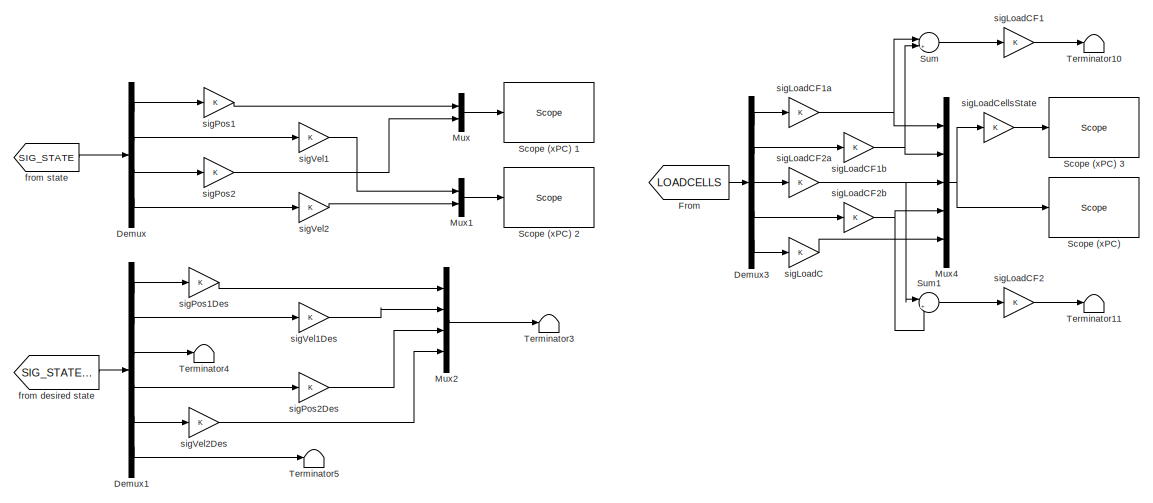
[diagram: signals - part 1/3, top center region]
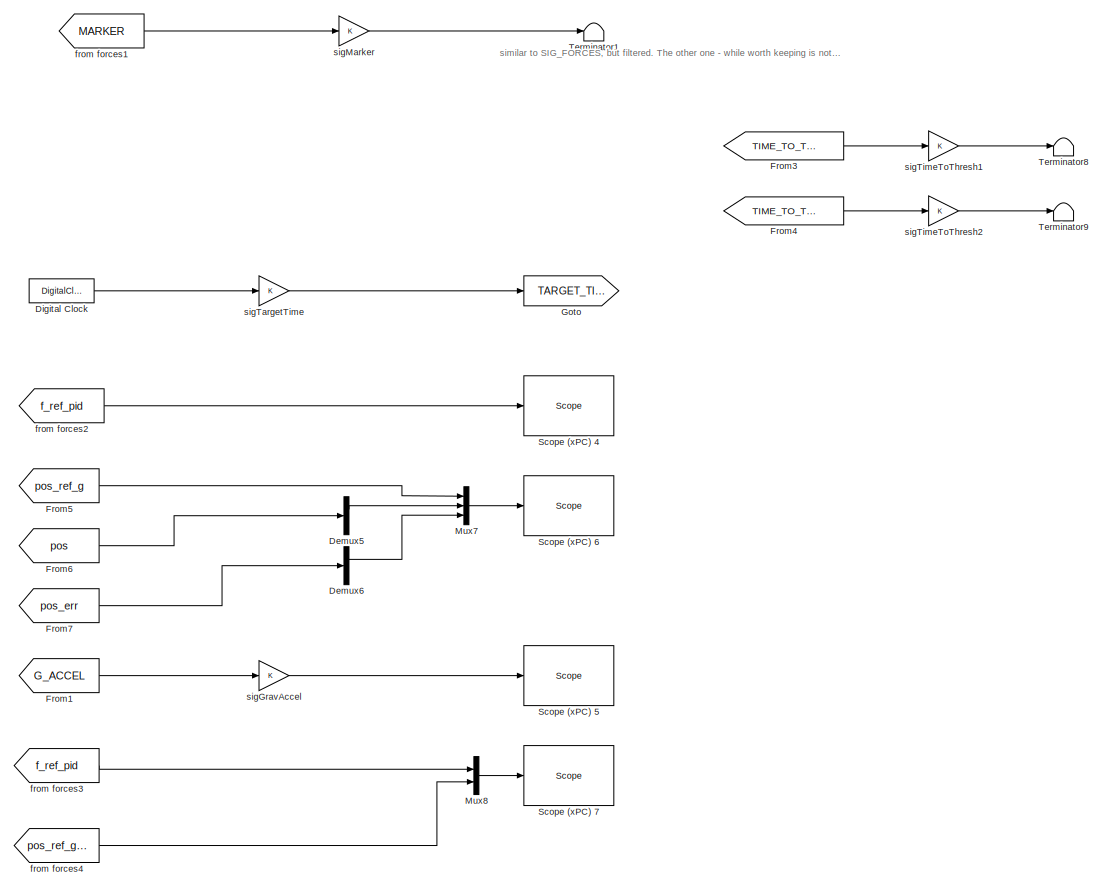
[diagram: signals - part 2/3, bottom center region]
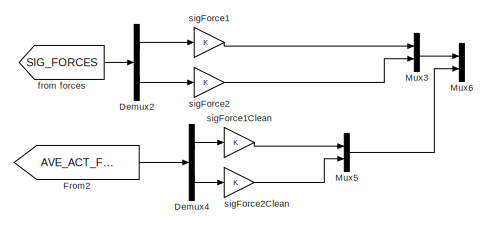
[diagram: signals - part 3/3, middle right region]
BLOCK [SubSystem] signals
  Ports = []
  RequestExecContextInheritance = off
  Variant = off
BLOCK [Demux] signals/Demux
  Commented = on
  DisplayOption = bar
  Ports = [1, 4]
BLOCK [Demux] signals/Demux1
  Commented = on
  DisplayOption = bar
  Outputs = 6
  Ports = [1, 6]
BLOCK [Demux] signals/Demux2
  Commented = on
  DisplayOption = bar
  Outputs = 2
  Ports = [1, 2]
BLOCK [Demux] signals/Demux3
  Commented = on
  DisplayOption = bar
  Outputs = 5
  Ports = [1, 5]
BLOCK [Demux] signals/Demux4
  Commented = on
  DisplayOption = bar
  Outputs = 2
  Ports = [1, 2]
BLOCK [Demux] signals/Demux5
  DisplayOption = bar
  Outputs = 2
  Ports = [1, 2]
BLOCK [Demux] signals/Demux6
  DisplayOption = bar
  Outputs = 2
  Ports = [1, 2]
BLOCK [DigitalClock] signals/Digital Clock
  SampleTime = .001
BLOCK [From] signals/From
  Commented = on
  GotoTag = LOADCELLS
  TagVisibility = global
BLOCK [From] signals/From1
  GotoTag = G_ACCEL
  TagVisibility = global
BLOCK [From] signals/From2
  Commented = on
  GotoTag = AVE_ACT_FORCE
  TagVisibility = global
BLOCK [From] signals/From3
  Commented = on
  GotoTag = TIME_TO_THRESH_1
BLOCK [From] signals/From4
  Commented = on
  GotoTag = TIME_TO_THRESH_2
BLOCK [From] signals/From5
  GotoTag = pos_ref_g
  TagVisibility = global
BLOCK [From] signals/From6
  GotoTag = pos
  TagVisibility = global
BLOCK [From] signals/From7
  GotoTag = pos_err
  TagVisibility = global
BLOCK [Goto] signals/Goto
  GotoTag = TARGET_TIME
  TagVisibility = global
BLOCK [Mux] signals/Mux
  Commented = on
  DisplayOption = bar
  Inputs = 2
  Ports = [2, 1]
BLOCK [Mux] signals/Mux1
  Commented = on
  DisplayOption = bar
  Inputs = 2
  Ports = [2, 1]
BLOCK [Mux] signals/Mux2
  Commented = on
  DisplayOption = bar
  Ports = [4, 1]
BLOCK [Mux] signals/Mux3
  Commented = on
  DisplayOption = bar
  Inputs = 2
  Ports = [2, 1]
BLOCK [Mux] signals/Mux4
  Commented = on
  DisplayOption = bar
  Inputs = 5
  Ports = [5, 1]
BLOCK [Mux] signals/Mux5
  Commented = on
  DisplayOption = bar
  Inputs = 2
  Ports = [2, 1]
BLOCK [Mux] signals/Mux6
  Commented = on
  DisplayOption = bar
  Inputs = 2
  Ports = [2, 1]
BLOCK [Mux] signals/Mux7
  DisplayOption = bar
  Inputs = 3
  Ports = [3, 1]
BLOCK [Mux] signals/Mux8
  DisplayOption = bar
  Inputs = 2
  Ports = [2, 1]
BLOCK [Reference] signals/Scope (xPC)   REF=slrtlib/Displays and
Logging/Scope 
  Commented = on
  Ports = [1]
  SourceBlock = slrtlib/Displays and\nLogging/Scope
  SourceType = xpcscopeblock
BLOCK [Reference] signals/Scope (xPC) 1  REF=slrtlib/Displays and
Logging/Scope 
  Commented = on
  Ports = [1]
  SourceBlock = slrtlib/Displays and\nLogging/Scope
  SourceType = xpcscopeblock
BLOCK [Reference] signals/Scope (xPC) 2  REF=slrtlib/Displays and
Logging/Scope 
  Commented = on
  Ports = [1]
  SourceBlock = slrtlib/Displays and\nLogging/Scope
  SourceType = xpcscopeblock
BLOCK [Reference] signals/Scope (xPC) 3  REF=slrtlib/Displays and
Logging/Scope 
  Commented = on
  Ports = [1]
  SourceBlock = slrtlib/Displays and\nLogging/Scope
  SourceType = xpcscopeblock
BLOCK [Reference] signals/Scope (xPC) 4  REF=slrtlib/Displays and
Logging/Scope 
  Ports = [1]
  SourceBlock = slrtlib/Displays and\nLogging/Scope
  SourceType = xpcscopeblock
BLOCK [Reference] signals/Scope (xPC) 5  REF=slrtlib/Displays and
Logging/Scope 
  Ports = [1]
  SourceBlock = slrtlib/Displays and\nLogging/Scope
  SourceType = xpcscopeblock
BLOCK [Reference] signals/Scope (xPC) 6  REF=slrtlib/Displays and
Logging/Scope 
  Ports = [1]
  SourceBlock = slrtlib/Displays and\nLogging/Scope
  SourceType = xpcscopeblock
BLOCK [Reference] signals/Scope (xPC) 7  REF=slrtlib/Displays and
Logging/Scope 
  Ports = [1]
  SourceBlock = slrtlib/Displays and\nLogging/Scope
  SourceType = xpcscopeblock
BLOCK [Sum] signals/Sum
  Commented = on
  IconShape = round
  InputSameDT = off
  Inputs = |++
  OutDataTypeStr = Inherit: Inherit via internal rule
  Ports = [2, 1]
  SaturateOnIntegerOverflow = off
BLOCK [Sum] signals/Sum1
  Commented = on
  IconShape = round
  InputSameDT = off
  Inputs = |++
  OutDataTypeStr = Inherit: Inherit via internal rule
  Ports = [2, 1]
  SaturateOnIntegerOverflow = off
BLOCK [Terminator] signals/Terminator1
  Commented = on
BLOCK [Terminator] signals/Terminator10
  Commented = on
BLOCK [Terminator] signals/Terminator11
  Commented = on
BLOCK [Terminator] signals/Terminator3
  Commented = on
BLOCK [Terminator] signals/Terminator4
  Commented = on
BLOCK [Terminator] signals/Terminator5
  Commented = on
BLOCK [Terminator] signals/Terminator8
  Commented = on
BLOCK [Terminator] signals/Terminator9
  Commented = on
BLOCK [From] signals/from desired state
  Commented = on
  GotoTag = SIG_STATEDES
BLOCK [From] signals/from forces
  Commented = on
  GotoTag = SIG_FORCES
  TagVisibility = global
BLOCK [From] signals/from forces1
  Commented = on
  GotoTag = MARKER
  TagVisibility = global
BLOCK [From] signals/from forces2
  GotoTag = f_ref_pid
  TagVisibility = global
BLOCK [From] signals/from forces3
  GotoTag = f_ref_pid
  TagVisibility = global
BLOCK [From] signals/from forces4
  GotoTag = pos_ref_g_2
  TagVisibility = global
BLOCK [From] signals/from state
  Commented = on
  GotoTag = SIG_STATE
  TagVisibility = global
BLOCK [Gain] signals/sigForce1
  Commented = on
  OutDataTypeStr = Inherit: Inherit via internal rule
  ParamDataTypeStr = Inherit: Inherit via internal rule
  SaturateOnIntegerOverflow = off
BLOCK [Gain] signals/sigForce1Clean
  Commented = on
  OutDataTypeStr = Inherit: Inherit via internal rule
  ParamDataTypeStr = Inherit: Inherit via internal rule
  SaturateOnIntegerOverflow = off
BLOCK [Gain] signals/sigForce2
  Commented = on
  OutDataTypeStr = Inherit: Inherit via internal rule
  ParamDataTypeStr = Inherit: Inherit via internal rule
  SaturateOnIntegerOverflow = off
BLOCK [Gain] signals/sigForce2Clean
  Commented = on
  OutDataTypeStr = Inherit: Inherit via internal rule
  ParamDataTypeStr = Inherit: Inherit via internal rule
  SaturateOnIntegerOverflow = off
BLOCK [Gain] signals/sigGravAccel
  OutDataTypeStr = Inherit: Inherit via internal rule
  ParamDataTypeStr = Inherit: Inherit via internal rule
  SaturateOnIntegerOverflow = off
BLOCK [Gain] signals/sigLoadC
  Commented = on
  OutDataTypeStr = Inherit: Inherit via internal rule
  ParamDataTypeStr = Inherit: Inherit via internal rule
  SaturateOnIntegerOverflow = off
BLOCK [Gain] signals/sigLoadCF1
  Commented = on
  OutDataTypeStr = Inherit: Inherit via internal rule
  ParamDataTypeStr = Inherit: Inherit via internal rule
  SaturateOnIntegerOverflow = off
BLOCK [Gain] signals/sigLoadCF1a
  Commented = on
  OutDataTypeStr = Inherit: Inherit via internal rule
  ParamDataTypeStr = Inherit: Inherit via internal rule
  SaturateOnIntegerOverflow = off
BLOCK [Gain] signals/sigLoadCF1b
  Commented = on
  OutDataTypeStr = Inherit: Inherit via internal rule
  ParamDataTypeStr = Inherit: Inherit via internal rule
  SaturateOnIntegerOverflow = off
BLOCK [Gain] signals/sigLoadCF2
  Commented = on
  OutDataTypeStr = Inherit: Inherit via internal rule
  ParamDataTypeStr = Inherit: Inherit via internal rule
  SaturateOnIntegerOverflow = off
BLOCK [Gain] signals/sigLoadCF2a
  Commented = on
  OutDataTypeStr = Inherit: Inherit via internal rule
  ParamDataTypeStr = Inherit: Inherit via internal rule
  SaturateOnIntegerOverflow = off
BLOCK [Gain] signals/sigLoadCF2b
  Commented = on
  OutDataTypeStr = Inherit: Inherit via internal rule
  ParamDataTypeStr = Inherit: Inherit via internal rule
  SaturateOnIntegerOverflow = off
BLOCK [Gain] signals/sigLoadCellsState
  Commented = on
  OutDataTypeStr = Inherit: Inherit via internal rule
  ParamDataTypeStr = Inherit: Inherit via internal rule
  SaturateOnIntegerOverflow = off
BLOCK [Gain] signals/sigMarker
  Commented = on
  OutDataTypeStr = Inherit: Inherit via internal rule
  ParamDataTypeStr = Inherit: Inherit via internal rule
  SaturateOnIntegerOverflow = off
BLOCK [Gain] signals/sigPos1
  Commented = on
  OutDataTypeStr = Inherit: Inherit via internal rule
  ParamDataTypeStr = Inherit: Inherit via internal rule
  SaturateOnIntegerOverflow = off
BLOCK [Gain] signals/sigPos1Des
  Commented = on
  OutDataTypeStr = Inherit: Inherit via internal rule
  ParamDataTypeStr = Inherit: Inherit via internal rule
  SaturateOnIntegerOverflow = off
BLOCK [Gain] signals/sigPos2
  Commented = on
  OutDataTypeStr = Inherit: Inherit via internal rule
  ParamDataTypeStr = Inherit: Inherit via internal rule
  SaturateOnIntegerOverflow = off
BLOCK [Gain] signals/sigPos2Des
  Commented = on
  OutDataTypeStr = Inherit: Inherit via internal rule
  ParamDataTypeStr = Inherit: Inherit via internal rule
  SaturateOnIntegerOverflow = off
BLOCK [Gain] signals/sigTargetTime
  OutDataTypeStr = Inherit: Inherit via internal rule
  ParamDataTypeStr = Inherit: Inherit via internal rule
  SaturateOnIntegerOverflow = off
BLOCK [Gain] signals/sigTimeToThresh1
  Commented = on
  OutDataTypeStr = Inherit: Inherit via internal rule
  ParamDataTypeStr = Inherit: Inherit via internal rule
  SaturateOnIntegerOverflow = off
BLOCK [Gain] signals/sigTimeToThresh2
  Commented = on
  OutDataTypeStr = Inherit: Inherit via internal rule
  ParamDataTypeStr = Inherit: Inherit via internal rule
  SaturateOnIntegerOverflow = off
BLOCK [Gain] signals/sigVel1
  Commented = on
  OutDataTypeStr = Inherit: Inherit via internal rule
  ParamDataTypeStr = Inherit: Inherit via internal rule
  SaturateOnIntegerOverflow = off
BLOCK [Gain] signals/sigVel1Des
  Commented = on
  OutDataTypeStr = Inherit: Inherit via internal rule
  ParamDataTypeStr = Inherit: Inherit via internal rule
  SaturateOnIntegerOverflow = off
BLOCK [Gain] signals/sigVel2
  Commented = on
  OutDataTypeStr = Inherit: Inherit via internal rule
  ParamDataTypeStr = Inherit: Inherit via internal rule
  SaturateOnIntegerOverflow = off
BLOCK [Gain] signals/sigVel2Des
  Commented = on
  OutDataTypeStr = Inherit: Inherit via internal rule
  ParamDataTypeStr = Inherit: Inherit via internal rule
  SaturateOnIntegerOverflow = off
BLOCK [Constant] standby-OFF
  Value = 0
BLOCK [Constant] standby-ON
ANNOTATION Robot: Note that this is NOT suitable for any type of feedback - it is just a parameter for the game
ANNOTATION Robot: calibrated such that full extension is equal to 1. To calibrate, just read the value when at full extension and divide by it.
ANNOTATION parameters: used for variables that we do not want to change all of a sudden (like gains).
ANNOTATION signals: similar to SIG_FORCES, but filtered. The other one - while worth keeping is not clean enough to use in the game.
LINE Compare To Constant:1 -> Data Type Conversion:1
LINE Constant3:1 -> MATLAB Function:4
LINE Data Type Conversion:1 -> Discrete-Time Integrator:2
LINE Discrete-Time Integrator:1 -> MATLAB Function:3
LINE From1:1 -> MATLAB Function:5
LINE From2:1 -> MATLAB Function:6
LINE From3:1 -> Discrete-Time Integrator:1
LINE From:1 -> Compare To Constant:1
LINE HL Controller/Constant2:1 -> HL Controller/Multiport Switch:2
LINE HL Controller/Constant:1 -> HL Controller/p_ref_b:1
LINE HL Controller/Delay1:1 -> HL Controller/Multiport Switch:1
LINE HL Controller/Delay:1 -> HL Controller/Demux:1
LINE HL Controller/Demux:2 -> HL Controller/Discrete Filter:1
LINE HL Controller/Discrete Filter:1 -> HL Controller/Gain1:1
NET HL Controller/Discrete-Time Integrator:1 -> HL Controller/Goto2:1, HL Controller/Multiport Switch:3
LINE HL Controller/Gain1:1 -> HL Controller/Discrete-Time Integrator:1
NET HL Controller/Manual Switch3:1 -> HL Controller/Delay1:1, HL Controller/Discrete-Time Integrator:2
NET HL Controller/Multiport Switch:1 -> HL Controller/Goto1:1, HL Controller/p_ref_g:1
LINE HL Controller/Switch_Off:1 -> HL Controller/Manual Switch3:1
LINE HL Controller/Switch_On:1 -> HL Controller/Manual Switch3:2
LINE HL Controller/from forces2:1 -> HL Controller/Delay:1
LINE HL Controller:1 -> Mux:1
LINE HL Controller:2 -> Mux:2
LINE LL Controller/Discrete PID Controller:1 -> LL Controller/Goto3:1
LINE LL Controller/From1:1 -> LL Controller/Saturation Dynamic:1
LINE LL Controller/From2:1 -> LL Controller/Gain:1
LINE LL Controller/From3:1 -> LL Controller/Mux:2
LINE LL Controller/From:1 -> LL Controller/Mux:1
LINE LL Controller/Gain:1 -> LL Controller/Saturation Dynamic:3
LINE LL Controller/Mux:1 -> LL Controller/Saturation Dynamic:2
LINE LL Controller/Saturation Dynamic:1 -> LL Controller/Forces:1
NET LL Controller/Sum:1 -> LL Controller/Discrete PID Controller:1, LL Controller/Goto2:1
LINE LL Controller/pos_meas:1 -> LL Controller/Sum:2
LINE LL Controller/pos_ref:1 -> LL Controller/Sum:1
LINE LL Controller:1 -> Robot:1
NET MATLAB Function:1 -> Goto2:1, Unit Delay:1
LINE MATLAB Function:2 -> Goto3:1
LINE MATLAB Function:3 -> Goto5:1
LINE MATLAB Function:4 -> Goto1:1
LINE MATLAB Function:5 -> Goto4:1
LINE Main Switch:1 -> MATLAB Function:2
LINE Mux:1 -> LL Controller:1
NET Robot/Demux1:1 -> Robot/Discrete Derivative:1, Robot/Mux3:1
NET Robot/Demux1:2 -> Robot/Discrete Derivative1:1, Robot/Mux3:2
NET Robot/Demux:1 -> Robot/account for handedness:1, Robot/filtered force output:1
NET Robot/Demux:2 -> Robot/account for handedness:2, Robot/filtered force output:2
LINE Robot/Discrete Derivative1:1 -> Robot/Goto6:1
LINE Robot/Discrete Derivative:1 -> Robot/Goto5:1
LINE Robot/Forces:1 -> Robot/Demux:1
LINE Robot/Gain1:1 -> Robot/Mux:2
LINE Robot/Gain:1 -> Robot/Mux:1
LINE Robot/Mux1:1 -> Robot/account for handedness force:1
NET Robot/Mux3:1 -> Robot/Goto2:1, Robot/pos_meas:1
LINE Robot/Mux:1 -> Robot/Demux1:1
LINE Robot/PCI 6221 ENC 1:1 -> Robot/account for handedness1:2
LINE Robot/PCI 6221 ENC :1 -> Robot/account for handedness1:1
LINE Robot/PCI-6221 AD1:1 -> Robot/account for handedness2:1
LINE Robot/PCI-6221 AD1:2 -> Robot/gravDir:1
LINE Robot/PCI-6221 AD1:3 -> Robot/account for handedness2:2
LINE Robot/PCI-6221 AD1:4 -> Robot/Mux1:1
LINE Robot/PCI-6221 AD1:5 -> Robot/Mux1:2
LINE Robot/PCI-6221 AD1:6 -> Robot/Mux1:3
LINE Robot/PCI-6221 AD1:7 -> Robot/Mux1:4
LINE Robot/PCI-6221 AD1:8 -> Robot/Mux1:5
LINE Robot/account for handedness force/From:1 -> Robot/account for handedness force/MATLAB Function:2
LINE Robot/account for handedness force/In1:1 -> Robot/account for handedness force/MATLAB Function:1
LINE Robot/account for handedness force/MATLAB Function:1 -> Robot/account for handedness force/Out1:1
LINE Robot/account for handedness force:1 -> Robot/Goto:1
LINE Robot/account for handedness/From:1 -> Robot/account for handedness/MATLAB Function:3
LINE Robot/account for handedness/In1:1 -> Robot/account for handedness/MATLAB Function:1
LINE Robot/account for handedness/In2:1 -> Robot/account for handedness/MATLAB Function:2
LINE Robot/account for handedness/MATLAB Function:1 -> Robot/account for handedness/Out1:1
LINE Robot/account for handedness/MATLAB Function:2 -> Robot/account for handedness/Out2:1
LINE Robot/account for handedness1/From:1 -> Robot/account for handedness1/MATLAB Function:3
LINE Robot/account for handedness1/In1:1 -> Robot/account for handedness1/MATLAB Function:1
LINE Robot/account for handedness1/In2:1 -> Robot/account for handedness1/MATLAB Function:2
LINE Robot/account for handedness1/MATLAB Function:1 -> Robot/account for handedness1/Out1:1
LINE Robot/account for handedness1/MATLAB Function:2 -> Robot/account for handedness1/Out2:1
LINE Robot/account for handedness1:1 -> Robot/get offsets:1
LINE Robot/account for handedness1:2 -> Robot/get offsets:2
LINE Robot/account for handedness2/From:1 -> Robot/account for handedness2/MATLAB Function:3
LINE Robot/account for handedness2/In1:1 -> Robot/account for handedness2/MATLAB Function:1
LINE Robot/account for handedness2/In2:1 -> Robot/account for handedness2/MATLAB Function:2
LINE Robot/account for handedness2/MATLAB Function:1 -> Robot/account for handedness2/Out1:1
LINE Robot/account for handedness2/MATLAB Function:2 -> Robot/account for handedness2/Out2:1
LINE Robot/account for handedness2:1 -> Robot/Mux:3
LINE Robot/account for handedness2:2 -> Robot/Mux:4
LINE Robot/account for handedness:1 -> Robot/PCI-6221 DA:1
LINE Robot/account for handedness:2 -> Robot/PCI-6221 DA:2
LINE Robot/filtered force output/In1:1 -> Robot/filtered force output/Low Pass 100 Hz:1
LINE Robot/filtered force output/In2:1 -> Robot/filtered force output/Low Pass 100 Hz1:1
LINE Robot/filtered force output/Low Pass 100 Hz1:1 -> Robot/filtered force output/Memory1:1
LINE Robot/filtered force output/Low Pass 100 Hz:1 -> Robot/filtered force output/Memory:1
LINE Robot/filtered force output/Memory1:1 -> Robot/filtered force output/Mux2:2
LINE Robot/filtered force output/Memory:1 -> Robot/filtered force output/Mux2:1
LINE Robot/filtered force output/Mux2:1 -> Robot/filtered force output/Out1:1
LINE Robot/filtered force output:1 -> Robot/Goto1:1
LINE Robot/get offsets/Digital Clock:1 -> Robot/get offsets/MATLAB Function:3
LINE Robot/get offsets/MATLAB Function:1 -> Robot/get offsets/enc1:1
LINE Robot/get offsets/MATLAB Function:2 -> Robot/get offsets/enc2:1
LINE Robot/get offsets/MATLAB Function:3 -> Robot/get offsets/Memory1:1
LINE Robot/get offsets/MATLAB Function:4 -> Robot/get offsets/Memory:1
LINE Robot/get offsets/Memory1:1 -> Robot/get offsets/MATLAB Function:4
LINE Robot/get offsets/Memory:1 -> Robot/get offsets/MATLAB Function:5
LINE Robot/get offsets/enc1_:1 -> Robot/get offsets/MATLAB Function:1
LINE Robot/get offsets/enc2_:1 -> Robot/get offsets/MATLAB Function:2
LINE Robot/get offsets:1 -> Robot/Gain:1
LINE Robot/get offsets:2 -> Robot/Gain1:1
LINE Robot/gravDir/Constant:1 -> Robot/gravDir/Sum:2
LINE Robot/gravDir/In1:1 -> Robot/gravDir/Sum:1
LINE Robot/gravDir/Sum:1 -> Robot/gravDir/gain:1
LINE Robot/gravDir/gain:1 -> Robot/gravDir/Goto:1
LINE Robot:1 -> LL Controller:2
LINE Unit Delay:1 -> MATLAB Function:1
LINE parameters/Mux1:1 -> parameters/Goto2:1
LINE parameters/Mux2:1 -> parameters/Goto13:1
LINE parameters/Mux:1 -> parameters/Goto1:1
LINE parameters/Rounding Function:1 -> parameters/Saturation1:1
LINE parameters/Saturation1:1 -> parameters/Goto5:1
LINE parameters/Saturation2:1 -> parameters/Goto6:1
LINE parameters/Saturation:1 -> parameters/Goto4:1
LINE parameters/gain transition/From:1 -> parameters/gain transition/gainramp:1
LINE parameters/gain transition/Memory:1 -> parameters/gain transition/gainramp:3
LINE parameters/gain transition/gainramp:1 -> parameters/gain transition/val:1
LINE parameters/gain transition/gainramp:2 -> parameters/gain transition/Memory:1
LINE parameters/gain transition/targ:1 -> parameters/gain transition/gainramp:2
LINE parameters/gain transition1/From:1 -> parameters/gain transition1/gainramp:1
LINE parameters/gain transition1/Memory:1 -> parameters/gain transition1/gainramp:3
LINE parameters/gain transition1/gainramp:1 -> parameters/gain transition1/val:1
LINE parameters/gain transition1/gainramp:2 -> parameters/gain transition1/Memory:1
LINE parameters/gain transition1/targ:1 -> parameters/gain transition1/gainramp:2
LINE parameters/gain transition1:1 -> parameters/Mux:2
LINE parameters/gain transition2/From:1 -> parameters/gain transition2/gainramp:1
LINE parameters/gain transition2/Memory:1 -> parameters/gain transition2/gainramp:3
LINE parameters/gain transition2/gainramp:1 -> parameters/gain transition2/val:1
LINE parameters/gain transition2/gainramp:2 -> parameters/gain transition2/Memory:1
LINE parameters/gain transition2/targ:1 -> parameters/gain transition2/gainramp:2
LINE parameters/gain transition2:1 -> parameters/Mux1:1
LINE parameters/gain transition3/From:1 -> parameters/gain transition3/gainramp:1
LINE parameters/gain transition3/Memory:1 -> parameters/gain transition3/gainramp:3
LINE parameters/gain transition3/gainramp:1 -> parameters/gain transition3/val:1
LINE parameters/gain transition3/gainramp:2 -> parameters/gain transition3/Memory:1
LINE parameters/gain transition3/targ:1 -> parameters/gain transition3/gainramp:2
LINE parameters/gain transition3:1 -> parameters/Mux1:2
LINE parameters/gain transition4/From:1 -> parameters/gain transition4/gainramp:1
LINE parameters/gain transition4/Memory:1 -> parameters/gain transition4/gainramp:3
LINE parameters/gain transition4/gainramp:1 -> parameters/gain transition4/val:1
LINE parameters/gain transition4/gainramp:2 -> parameters/gain transition4/Memory:1
LINE parameters/gain transition4/targ:1 -> parameters/gain transition4/gainramp:2
LINE parameters/gain transition4:1 -> parameters/Mux2:1
LINE parameters/gain transition5/From:1 -> parameters/gain transition5/gainramp:1
LINE parameters/gain transition5/Memory:1 -> parameters/gain transition5/gainramp:3
LINE parameters/gain transition5/gainramp:1 -> parameters/gain transition5/val:1
LINE parameters/gain transition5/gainramp:2 -> parameters/gain transition5/Memory:1
LINE parameters/gain transition5/targ:1 -> parameters/gain transition5/gainramp:2
LINE parameters/gain transition5:1 -> parameters/Mux2:2
LINE parameters/gain transition:1 -> parameters/Mux:1
LINE parameters/parChangeRate:1 -> parameters/Goto3:1
LINE parameters/parFThresh:1 -> parameters/Goto15:1
LINE parameters/parFixedDur:1 -> parameters/Saturation2:1
LINE parameters/parForceTrigger:1 -> parameters/Goto10:1
LINE parameters/parKd1:1 -> parameters/gain transition2:1
LINE parameters/parKd2:1 -> parameters/gain transition3:1
LINE parameters/parKdV1:1 -> parameters/gain transition4:1
LINE parameters/parKdV2:1 -> parameters/gain transition5:1
LINE parameters/parKp1:1 -> parameters/gain transition:1
LINE parameters/parKp2:1 -> parameters/gain transition1:1
LINE parameters/parLeftMode:1 -> parameters/Saturation:1
LINE parameters/parMarker:1 -> parameters/Goto7:1
LINE parameters/parMaxTrajDur:1 -> parameters/Goto9:1
LINE parameters/parPStop:1 -> parameters/Goto14:1
LINE parameters/parTrajMode:1 -> parameters/Rounding Function:1
LINE parameters/parVThresh:1 -> parameters/Goto:1
LINE parameters/parWiggleAmp:1 -> parameters/Goto11:1
NET parameters/paremeters_ must_be_one:1 -> parameters/parChangeRate:1, parameters/parFThresh:1, parameters/parFixedDur:1, parameters/parForceTrigger:1, parameters/parKd1:1, parameters/parKd2:1, parameters/parKdV1:1, parameters/parKdV2:1, parameters/parKp1:1, parameters/parKp2:1, parameters/parLeftMode:1, parameters/parMarker:1, parameters/parMaxTrajDur:1, parameters/parPStop:1, parameters/parTrajMode:1, parameters/parVThresh:1, parameters/parWiggleAmp:1
LINE signals/Demux1:1 -> signals/sigPos1Des:1
LINE signals/Demux1:2 -> signals/sigVel1Des:1
LINE signals/Demux1:3 -> signals/Terminator4:1
LINE signals/Demux1:4 -> signals/sigPos2Des:1
LINE signals/Demux1:5 -> signals/sigVel2Des:1
LINE signals/Demux1:6 -> signals/Terminator5:1
LINE signals/Demux2:1 -> signals/sigForce1:1
LINE signals/Demux2:2 -> signals/sigForce2:1
LINE signals/Demux3:1 -> signals/sigLoadCF1a:1
LINE signals/Demux3:2 -> signals/sigLoadCF1b:1
LINE signals/Demux3:3 -> signals/sigLoadCF2a:1
LINE signals/Demux3:4 -> signals/sigLoadCF2b:1
LINE signals/Demux3:5 -> signals/sigLoadC:1
LINE signals/Demux4:1 -> signals/sigForce1Clean:1
LINE signals/Demux4:2 -> signals/sigForce2Clean:1
LINE signals/Demux5:1 -> signals/Mux7:2
LINE signals/Demux6:1 -> signals/Mux7:3
LINE signals/Demux:1 -> signals/sigPos1:1
LINE signals/Demux:2 -> signals/sigVel1:1
LINE signals/Demux:3 -> signals/sigPos2:1
LINE signals/Demux:4 -> signals/sigVel2:1
LINE signals/Digital Clock:1 -> signals/sigTargetTime:1
LINE signals/From1:1 -> signals/sigGravAccel:1
LINE signals/From2:1 -> signals/Demux4:1
LINE signals/From3:1 -> signals/sigTimeToThresh1:1
LINE signals/From4:1 -> signals/sigTimeToThresh2:1
LINE signals/From5:1 -> signals/Mux7:1
LINE signals/From6:1 -> signals/Demux5:1
LINE signals/From7:1 -> signals/Demux6:1
LINE signals/From:1 -> signals/Demux3:1
LINE signals/Mux1:1 -> signals/Scope (xPC) 2:1
LINE signals/Mux2:1 -> signals/Terminator3:1
LINE signals/Mux3:1 -> signals/Mux6:1
NET signals/Mux4:1 -> signals/Scope (xPC) :1, signals/sigLoadCellsState:1
LINE signals/Mux5:1 -> signals/Mux6:2
LINE signals/Mux7:1 -> signals/Scope (xPC) 6:1
LINE signals/Mux8:1 -> signals/Scope (xPC) 7:1
LINE signals/Mux:1 -> signals/Scope (xPC) 1:1
LINE signals/Sum1:1 -> signals/sigLoadCF2:1
LINE signals/Sum:1 -> signals/sigLoadCF1:1
LINE signals/from desired state:1 -> signals/Demux1:1
LINE signals/from forces1:1 -> signals/sigMarker:1
LINE signals/from forces2:1 -> signals/Scope (xPC) 4:1
LINE signals/from forces3:1 -> signals/Mux8:1
LINE signals/from forces4:1 -> signals/Mux8:2
LINE signals/from forces:1 -> signals/Demux2:1
LINE signals/from state:1 -> signals/Demux:1
LINE signals/sigForce1:1 -> signals/Mux3:1
LINE signals/sigForce1Clean:1 -> signals/Mux5:1
LINE signals/sigForce2:1 -> signals/Mux3:2
LINE signals/sigForce2Clean:1 -> signals/Mux5:2
LINE signals/sigGravAccel:1 -> signals/Scope (xPC) 5:1
LINE signals/sigLoadC:1 -> signals/Mux4:5
LINE signals/sigLoadCF1:1 -> signals/Terminator10:1
NET signals/sigLoadCF1a:1 -> signals/Mux4:1, signals/Sum:1
NET signals/sigLoadCF1b:1 -> signals/Mux4:2, signals/Sum:2
LINE signals/sigLoadCF2:1 -> signals/Terminator11:1
NET signals/sigLoadCF2a:1 -> signals/Mux4:3, signals/Sum1:1
NET signals/sigLoadCF2b:1 -> signals/Mux4:4, signals/Sum1:2
LINE signals/sigLoadCellsState:1 -> signals/Scope (xPC) 3:1
LINE signals/sigMarker:1 -> signals/Terminator1:1
LINE signals/sigPos1:1 -> signals/Mux:1
LINE signals/sigPos1Des:1 -> signals/Mux2:1
LINE signals/sigPos2:1 -> signals/Mux:2
LINE signals/sigPos2Des:1 -> signals/Mux2:3
LINE signals/sigTargetTime:1 -> signals/Goto:1
LINE signals/sigTimeToThresh1:1 -> signals/Terminator8:1
LINE signals/sigTimeToThresh2:1 -> signals/Terminator9:1
LINE signals/sigVel1:1 -> signals/Mux1:1
LINE signals/sigVel1Des:1 -> signals/Mux2:2
LINE signals/sigVel2:1 -> signals/Mux1:2
LINE signals/sigVel2Des:1 -> signals/Mux2:4
LINE standby-OFF:1 -> Main Switch:1
LINE standby-ON:1 -> Main Switch:2
note: NET lines group one-source signal fan-out (src -> all destinations, sorted); 1:1 wires keep LINE
CHART MATLAB Function states=1 transitions=1
  STATE_LABEL 'eML_blk_kernel()'
  STATE_LABEL 'SCRIPT:\n%% Create Finite State Machine for FINGER Robot \n\nfunction [state,f_ref1,f_ref2,ramp_switch,f_ref_lim] = StateMachine(state,main_switch,t_ramp,k_ramp,vel_meas_1,vel_meas_2)\n%#codegen\n\nramp_switch = 0;\n\n\nswitch state\n    \n    case 1 %standby phase \n        f_ref1=0; % establish reference force\n        f_ref2=0; % establish reference force \n\n        f_ref_lim=0; % establish limit for referen...<+1363ch>'
CHART Robot/get offsets/MATLAB Function states=1 transitions=1
  STATE_LABEL 'eML_blk_kernel()'
  STATE_LABEL 'SCRIPT:\n%% remove the position offset that comes from using the encoders for\n% feedback\n%%\nfunction [encoder1, encoder2, summedVals, nSamples] = getOffset(enc1_, enc2_, time, summedVals_, nSamples_)\n%#codegen\nsummedVals = summedVals_;\nif (time > 2) && (time < 3)\n    summedVals(1) = summedVals_(1) + enc1_;\n    summedVals(2) = summedVals_(2) + enc2_;\n    nSamples = nSamples_ + 1;\n    encoder1 = 0;\n ...<+298ch>'
CHART Robot/account for handedness/MATLAB Function states=1 transitions=1
  STATE_LABEL 'eML_blk_kernel()'
  STATE_LABEL 'SCRIPT:\n% encoder 1 and output 1 relate to the blue mechanism\n% encoder 2, output 2 and accel 2 relate to the gold mechanism\n% in right hand mode, we want the gold mechanism to control the index finger\n% in left hand mode, we want the blue mechanism to control the index finger\n\n% we wallways want the index finger to be finger 1\n\nfunction [output1, output2] = fcn(input1, input2, leftyMode)\n%#codege...<+117ch>'  <repeated x3 — deduplicated; at blocks: MATLAB Function>
CHART Robot/account for handedness1/MATLAB Function states=1 transitions=1
  STATE_LABEL 'eML_blk_kernel()'
CHART Robot/account for handedness2/MATLAB Function states=1 transitions=1
  STATE_LABEL 'eML_blk_kernel()'
CHART parameters/gain transition/gainramp states=1 transitions=1
  STATE_LABEL 'eML_blk_kernel()'
  STATE_LABEL 'SCRIPT:\n% state contains [valD_,val_,Ro_,t_]\nfunction [val,state1] = fcn(tr,valD,state)\n%#eml\n\n% first we need to check if they have changed the desired Value\nif ~ (valD == state(1))\n    state(1) = valD;\n    state(4) = 0;\n    state(3) = state(1) - state(2);\nend\n\nt = state(4);\nRo = state(3);\n\nif ((t <= tr) && (tr~=0))\n    Rd = Ro - Ro*(10*(t)^3/(tr)^3 - 15*(t)^4/(tr)^4 + 6*(t)^5/(tr)^5);\nelse\n    R...<+85ch>'  <repeated x6 — deduplicated; at blocks: gainramp>
CHART parameters/gain transition1/gainramp states=1 transitions=1
  STATE_LABEL 'eML_blk_kernel()'
CHART parameters/gain transition2/gainramp states=1 transitions=1
  STATE_LABEL 'eML_blk_kernel()'
CHART parameters/gain transition3/gainramp states=1 transitions=1
  STATE_LABEL 'eML_blk_kernel()'
CHART Robot/account for handedness force/MATLAB Function states=1 transitions=1
  STATE_LABEL 'eML_blk_kernel()'
  STATE_LABEL 'SCRIPT:\n% channel1 - gold tip\n% channel2 - blue tip\n% channel3 - gold base\n% channel4 - blue base\n% we wallways want the index finger to be finger 1\n\nfunction output = fcn(inp1, leftyMode)\n%#codegen\n\nif leftyMode == 1\n    output = [inp1(4); inp1(2); inp1(3); inp1(1); inp1(5)];\nelse\n    output = [inp1(3); inp1(1); inp1(4); inp1(2); inp1(5)];\n    %output = [inp1(3,1); inp1(4,2); inp1(5)];\nend\n'
CHART parameters/gain transition4/gainramp states=1 transitions=1
  STATE_LABEL 'eML_blk_kernel()'
CHART parameters/gain transition5/gainramp states=1 transitions=1
  STATE_LABEL 'eML_blk_kernel()'
